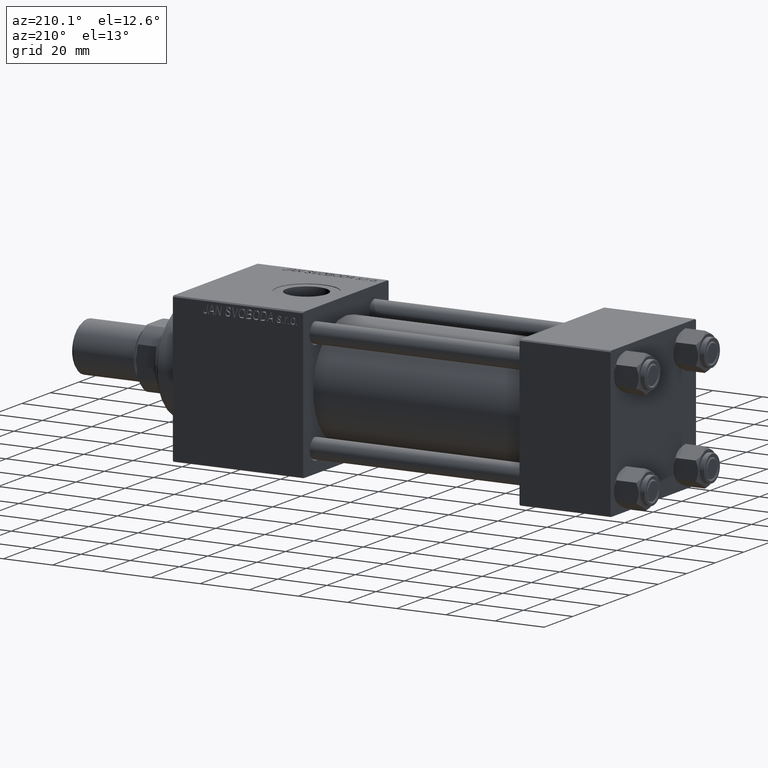
[diagram: clean part render]
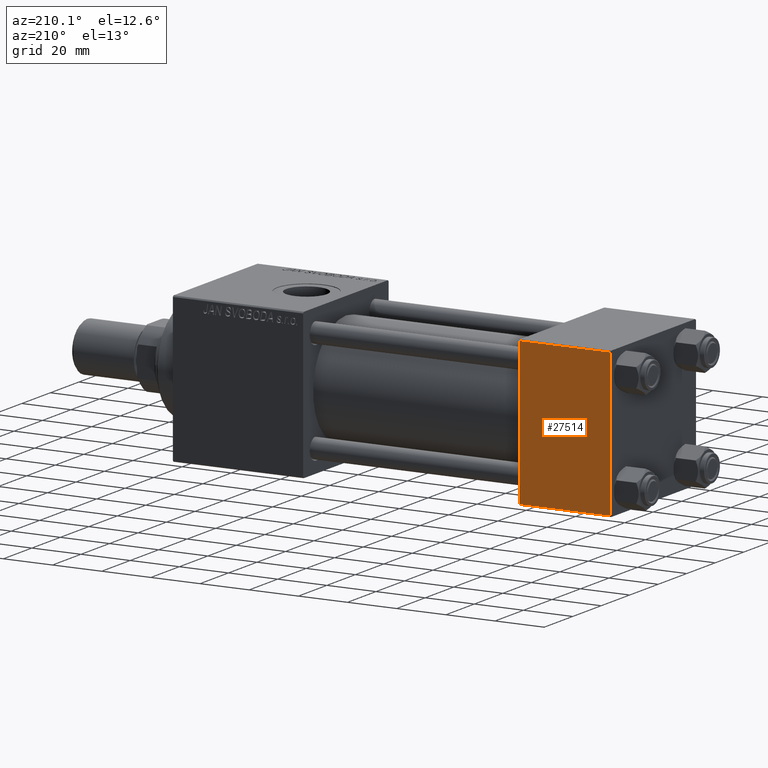
[diagram: same view with one face highlighted and labeled with its STEP entity id]
A machine part, auxiliary view. The second image highlights one B-rep face of the part: STEP entity #27514.
In plain terms, the highlighted planar face has unit normal (0, 1, 0).
Its self-contained STEP definition (entity closure, byte-faithful):
#30 = CARTESIAN_POINT ( 'NONE',  ( 0.000000000000000000, 29.99999999999999289, -29.50000000000000000 ) ) ;
#2014 = EDGE_LOOP ( 'NONE', ( #8870, #25823, #48479, #6851 ) ) ;
#2732 = EDGE_CURVE ( 'NONE', #21675, #49710, #15518, .T. ) ;
#4497 = CARTESIAN_POINT ( 'NONE',  ( 37.00000000000000000, 29.99999999999999289, 30.00000000000000000 ) ) ;
#4630 = DIRECTION ( 'NONE',  ( -0.000000000000000000, 1.000000000000000000, 0.000000000000000000 ) ) ;
#6851 = ORIENTED_EDGE ( 'NONE', *, *, #22488, .T. ) ;
#8870 = ORIENTED_EDGE ( 'NONE', *, *, #2732, .T. ) ;
#9476 = LINE ( 'NONE', #36112, #30289 ) ;
#9481 = PLANE ( 'NONE',  #10912 ) ;
#10912 = AXIS2_PLACEMENT_3D ( 'NONE', #20765, #4630, #47660 ) ;
#15518 = LINE ( 'NONE', #4497, #42838 ) ;
#16414 = DIRECTION ( 'NONE',  ( -1.000000000000000000, 0.000000000000000000, 0.000000000000000000 ) ) ;
#17431 = FACE_OUTER_BOUND ( 'NONE', #2014, .T. ) ;
#20765 = CARTESIAN_POINT ( 'NONE',  ( 37.00000000000000000, 29.99999999999999289, 30.00000000000000000 ) ) ;
#21675 = VERTEX_POINT ( 'NONE', #22560 ) ;
#22488 = EDGE_CURVE ( 'NONE', #26951, #21675, #37685, .T. ) ;
#22560 = CARTESIAN_POINT ( 'NONE',  ( 37.00000000000000000, 29.99999999999999289, 29.50000000000000000 ) ) ;
#22759 = CARTESIAN_POINT ( 'NONE',  ( 0.000000000000000000, 29.99999999999999289, 29.50000000000000000 ) ) ;
#23862 = VECTOR ( 'NONE', #33095, 1000.000000000000000 ) ;
#25823 = ORIENTED_EDGE ( 'NONE', *, *, #47583, .T. ) ;
#26951 = VERTEX_POINT ( 'NONE', #22759 ) ;
#27514 = ADVANCED_FACE ( 'NONE', ( #17431 ), #9481, .T. ) ;
#29585 = VERTEX_POINT ( 'NONE', #30 ) ;
#30289 = VECTOR ( 'NONE', #16414, 1000.000000000000000 ) ;
#33095 = DIRECTION ( 'NONE',  ( 1.000000000000000000, 0.000000000000000000, 0.000000000000000000 ) ) ;
#33283 = CARTESIAN_POINT ( 'NONE',  ( 0.000000000000000000, 29.99999999999999289, 30.00000000000000000 ) ) ;
#35478 = EDGE_CURVE ( 'NONE', #26951, #29585, #37119, .T. ) ;
#36112 = CARTESIAN_POINT ( 'NONE',  ( 37.00000000000000000, 29.99999999999999289, -29.50000000000000000 ) ) ;
#37119 = LINE ( 'NONE', #33283, #40762 ) ;
#37685 = LINE ( 'NONE', #40778, #23862 ) ;
#40762 = VECTOR ( 'NONE', #45061, 1000.000000000000000 ) ;
#40778 = CARTESIAN_POINT ( 'NONE',  ( 37.00000000000000000, 29.99999999999999289, 29.50000000000000000 ) ) ;
#42407 = CARTESIAN_POINT ( 'NONE',  ( 37.00000000000000000, 29.99999999999999289, -29.50000000000000000 ) ) ;
#42838 = VECTOR ( 'NONE', #47022, 1000.000000000000000 ) ;
#45061 = DIRECTION ( 'NONE',  ( 0.000000000000000000, 0.000000000000000000, -1.000000000000000000 ) ) ;
#47022 = DIRECTION ( 'NONE',  ( 0.000000000000000000, 0.000000000000000000, -1.000000000000000000 ) ) ;
#47583 = EDGE_CURVE ( 'NONE', #49710, #29585, #9476, .T. ) ;
#47660 = DIRECTION ( 'NONE',  ( 0.000000000000000000, -0.000000000000000000, 1.000000000000000000 ) ) ;
#48479 = ORIENTED_EDGE ( 'NONE', *, *, #35478, .F. ) ;
#49710 = VERTEX_POINT ( 'NONE', #42407 ) ;